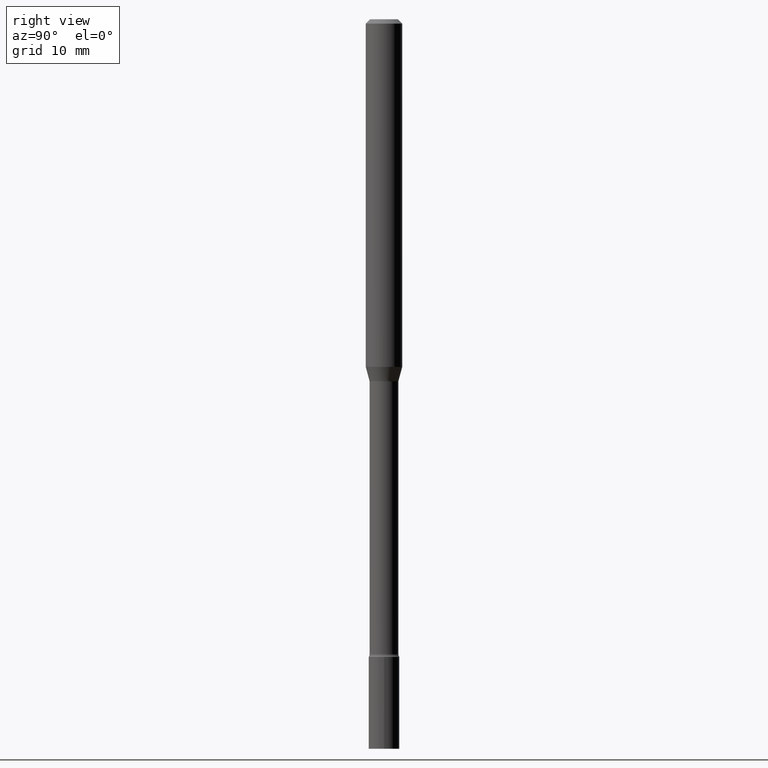
[diagram: clean part render]
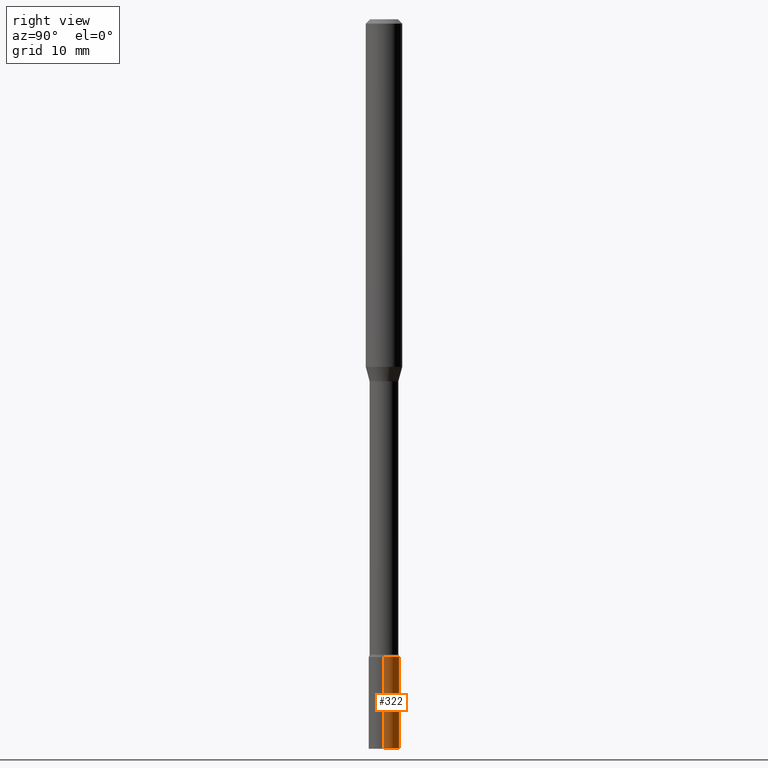
[diagram: same view with one face highlighted and labeled with its STEP entity id]
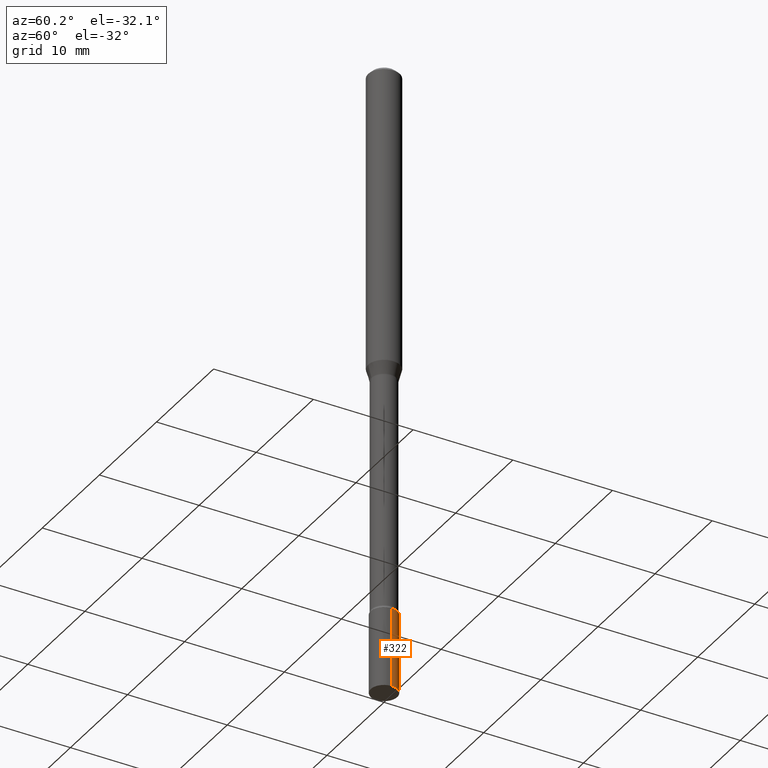
[diagram: same view with one face highlighted and labeled with its STEP entity id]
A machine part, right view. The second image highlights one B-rep face of the part: STEP entity #322.
A second angle (auxiliary view) of the same face is appended — the face is thin or edge-on in the first view.
In plain terms, the highlighted cylindrical surface (edge-blend (fillet) strip) has radius 1.3335 mm, axis along (-0, 0, 1).
Its self-contained STEP definition (entity closure, byte-faithful):
#7 = CIRCLE ( 'NONE', #413, 0.05249999999999999806 ) ;
#25 = DIRECTION ( 'NONE',  ( -2.445468806185136597E-29, 3.491481338843145583E-15, 1.000000000000000000 ) ) ;
#104 = VERTEX_POINT ( 'NONE', #359 ) ;
#124 = DIRECTION ( 'NONE',  ( -2.445468806185136597E-29, 3.491481338843145583E-15, 1.000000000000000000 ) ) ;
#131 = CARTESIAN_POINT ( 'NONE',  ( 0.000000000000000000, 0.000000000000000000, 0.000000000000000000 ) ) ;
#139 = VERTEX_POINT ( 'NONE', #374 ) ;
#169 = FACE_OUTER_BOUND ( 'NONE', #417, .T. ) ;
#181 = EDGE_CURVE ( 'NONE', #104, #139, #453, .T. ) ;
#222 = CARTESIAN_POINT ( 'NONE',  ( 5.343349341514523419E-29, -7.628886725372273518E-15, -2.185000000000000053 ) ) ;
#228 = EDGE_CURVE ( 'NONE', #261, #491, #327, .T. ) ;
#239 = VECTOR ( 'NONE', #406, 39.37007874015748143 ) ;
#259 = DIRECTION ( 'NONE',  ( -2.445468806185136877E-29, 3.491481338843145188E-15, 1.000000000000000000 ) ) ;
#261 = VERTEX_POINT ( 'NONE', #448 ) ;
#265 = ORIENTED_EDGE ( 'NONE', *, *, #228, .F. ) ;
#299 = CARTESIAN_POINT ( 'NONE',  ( 6.113672015462842613E-29, -8.728703347107864943E-15, -2.500000000000000000 ) ) ;
#302 = VECTOR ( 'NONE', #259, 39.37007874015748143 ) ;
#322 = ADVANCED_FACE ( 'NONE', ( #169 ), #423, .T. ) ;
#326 = EDGE_CURVE ( 'NONE', #261, #104, #7, .T. ) ;
#327 = LINE ( 'NONE', #408, #239 ) ;
#330 = CIRCLE ( 'NONE', #421, 0.05249999999999999806 ) ;
#359 = CARTESIAN_POINT ( 'NONE',  ( -0.05249999999999999806, -7.805760099966015907E-15, -2.500000000000000000 ) ) ;
#364 = AXIS2_PLACEMENT_3D ( 'NONE', #131, #411, #499 ) ;
#373 = CARTESIAN_POINT ( 'NONE',  ( -0.05249999999999999806, 3.730349362740525838E-16, -2.582440922383825311E-30 ) ) ;
#374 = CARTESIAN_POINT ( 'NONE',  ( -0.05249999999999999806, -7.805760099966015907E-15, -2.185000000000000053 ) ) ;
#382 = DIRECTION ( 'NONE',  ( 1.000000000000000000, -6.982962677686268288E-15, 0.000000000000000000 ) ) ;
#389 = CARTESIAN_POINT ( 'NONE',  ( 0.05249999999999999806, -7.995492265950801889E-15, -2.185000000000000053 ) ) ;
#391 = ORIENTED_EDGE ( 'NONE', *, *, #397, .F. ) ;
#395 = ORIENTED_EDGE ( 'NONE', *, *, #181, .T. ) ;
#397 = EDGE_CURVE ( 'NONE', #491, #139, #330, .T. ) ;
#406 = DIRECTION ( 'NONE',  ( -2.445468806185136877E-29, 3.491481338843145188E-15, 1.000000000000000000 ) ) ;
#408 = CARTESIAN_POINT ( 'NONE',  ( 0.05249999999999999806, -3.666055405785289629E-16, 2.559992807292866011E-30 ) ) ;
#411 = DIRECTION ( 'NONE',  ( -2.445468806185136597E-29, 3.491481338843145583E-15, 1.000000000000000000 ) ) ;
#413 = AXIS2_PLACEMENT_3D ( 'NONE', #299, #124, #382 ) ;
#417 = EDGE_LOOP ( 'NONE', ( #457, #395, #391, #265 ) ) ;
#421 = AXIS2_PLACEMENT_3D ( 'NONE', #222, #25, #426 ) ;
#423 = CYLINDRICAL_SURFACE ( 'NONE', #364, 0.05249999999999999806 ) ;
#426 = DIRECTION ( 'NONE',  ( 1.000000000000000000, -6.982962677686268288E-15, 0.000000000000000000 ) ) ;
#448 = CARTESIAN_POINT ( 'NONE',  ( 0.05249999999999999806, -9.095308887686393314E-15, -2.500000000000000000 ) ) ;
#453 = LINE ( 'NONE', #373, #302 ) ;
#457 = ORIENTED_EDGE ( 'NONE', *, *, #326, .T. ) ;
#491 = VERTEX_POINT ( 'NONE', #389 ) ;
#499 = DIRECTION ( 'NONE',  ( 1.000000000000000000, -6.982962677686265922E-15, 4.876176775795935232E-29 ) ) ;